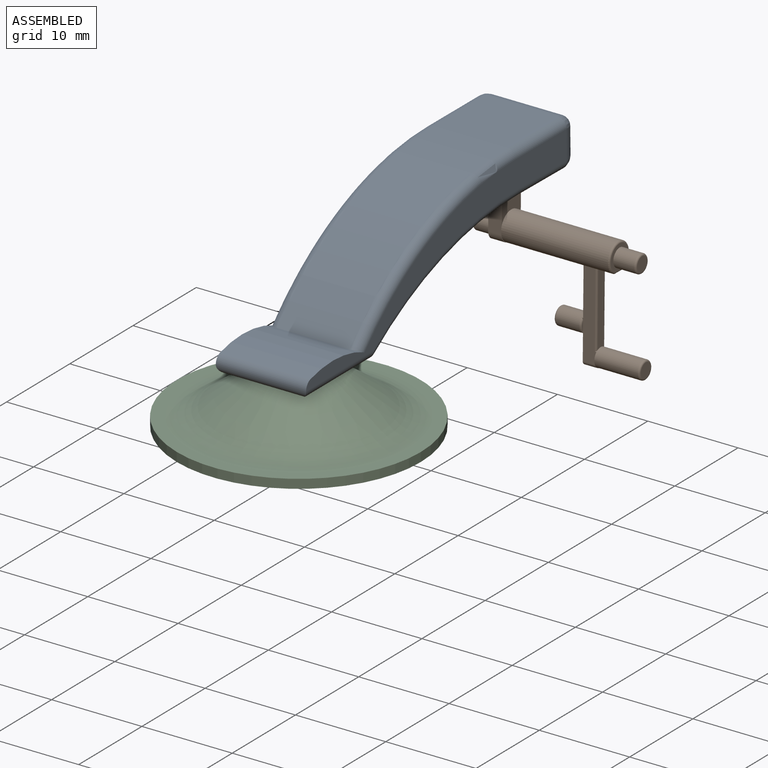
[diagram: assembled view]
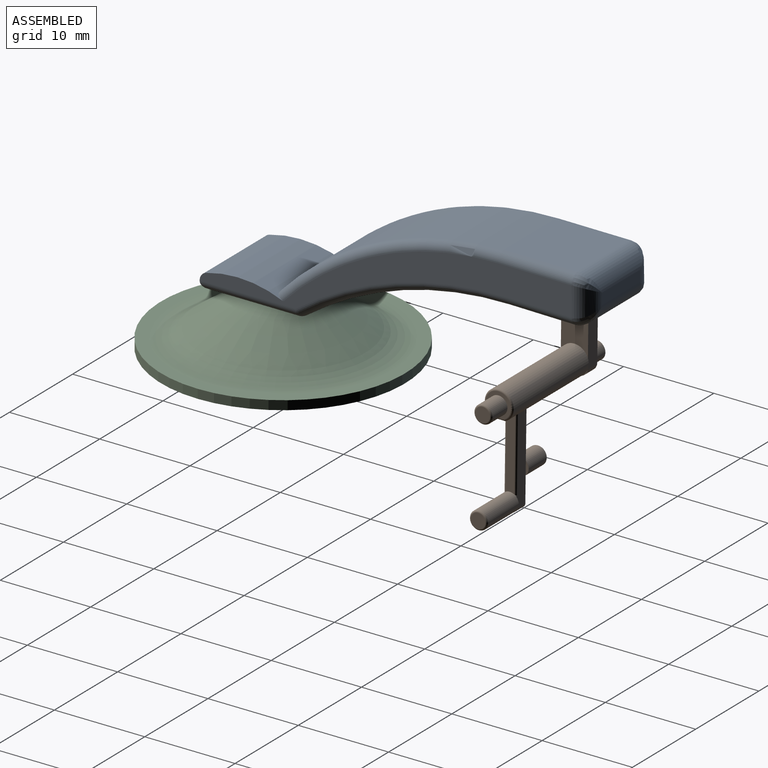
[diagram: assembled view, second angle]
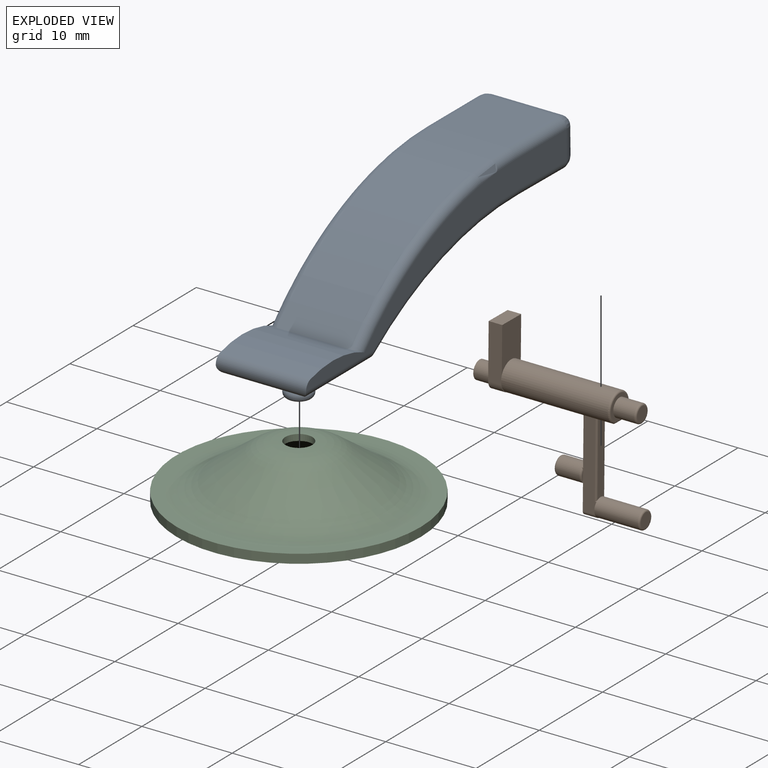
[diagram: exploded view]
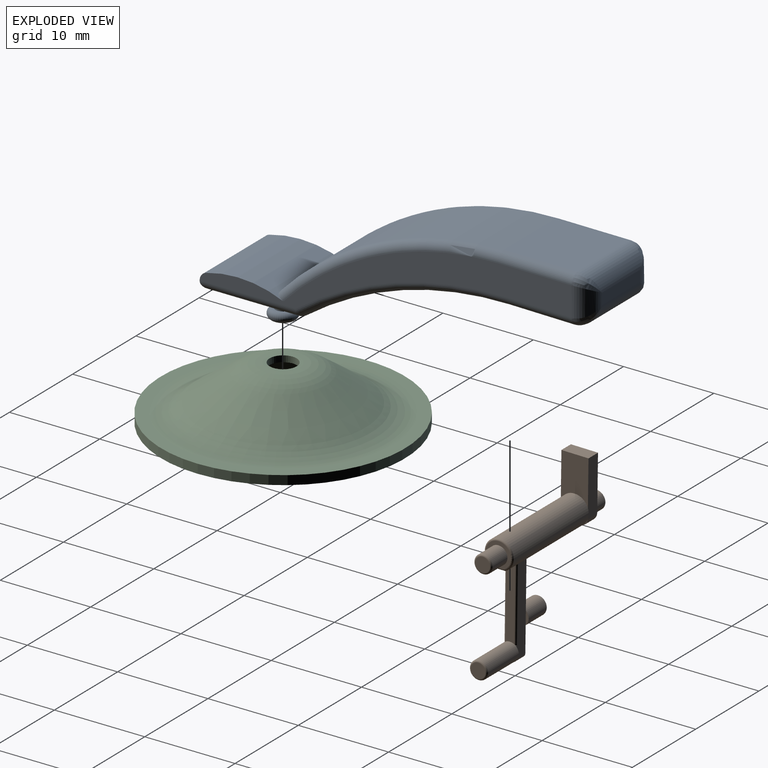
[diagram: exploded view, second angle]
ASSEMBLY  parts=3 mates=2
PART A: 46 faces, bbox 10x43.2x18.4 mm
  f0: plane 8x7.19mm, normal (0,-0.01,-1), area 53mm2, adj f5,f9,f18,f29,f30,f31,f32,f36
  f1: plane 8.1x8mm, normal (0,0,1), area 64.8mm2, adj f2,f20,f22,f40,f41,f45
  f2: cylinder r=33.55mm len=24.8mm, axis (-1,0,0), area 222.7mm2, adj f1,f3,f19,f21
  f3: cylinder r=12.71mm len=10mm, axis (-1,0,0), area 77mm2, adj f2,f7,f8,f12,f19,f21
  f4: plane 9.65x8mm, normal (0,0,-1), area 74.8mm2, adj f10,f12,f14,f15,f23
  f5: cylinder r=37.91mm len=22.73mm, axis (-1,0,0), area 194mm2, adj f0,f11,f15,f17
  f6: plane 6x1.25mm, normal (0,1,0.02), area 7.5mm2, adj f36,f39,f42,f45
  f7: plane 41.19x10.56mm, normal (1,0,0), area 101.9mm2, adj f3,f9,f10,f11,f12,f21,f22,f34
  f8: plane 41.19x10.56mm, normal (-1,0,0), area 101.9mm2, adj f3,f12,f14,f17,f18,f19,f20,f35
  f9: cylinder r=1mm len=7.2mm, axis (0,-1,0.01), area 11.3mm2, adj f0,f7,f11,f34
  f10: cylinder r=1mm len=10.65mm, axis (0,-1,0), area 16.2mm2, adj f4,f7,f12,f13
  f11: torus R=38.91mm, axis (1,0,0), area 38.5mm2, adj f5,f7,f9,f13
  f12: cylinder r=1mm len=10mm, axis (-1,0,0), area 27.5mm2, adj f3,f4,f7,f8,f10,f14
  f13: sphere r=1mm, area 0.6mm2, adj f10,f11,f15
  f14: cylinder r=1mm len=10.65mm, axis (0,1,0), area 16.2mm2, adj f4,f8,f12,f16
  f15: cylinder r=1mm len=8mm, axis (-1,0,0), area 5mm2, adj f4,f5,f13,f16
  f16: sphere r=1mm, area 0.6mm2, adj f14,f15,f17
  f17: torus R=38.91mm, axis (1,0,0), area 38.5mm2, adj f5,f8,f16,f18
  f18: cylinder r=1mm len=7.2mm, axis (0,1,-0.01), area 11.3mm2, adj f0,f8,f17,f35
  f19: torus R=32.55mm, axis (1,0,0), area 43mm2, adj f2,f3,f8,f20
  f20: cylinder r=1mm len=8.08mm, axis (0,-1,0), area 12.7mm2, adj f1,f8,f19,f41
  f21: torus R=32.55mm, axis (1,0,0), area 43mm2, adj f2,f3,f7,f22
  f22: cylinder r=1mm len=8.08mm, axis (0,1,0), area 12.7mm2, adj f1,f7,f21,f40
  f23: cylinder r=0.88mm len=2mm, axis (0,0,1), area 11mm2, adj f4,f26
  f24: cylinder r=1.5mm len=3mm, axis (0,0,1), area 0.1mm2, adj f27,f28
  f25: plane 1.94x1.94mm, normal (0,0,-1), area 3mm2, adj f28
  f26: plane 1.94x1.94mm, normal (0,0,1), area 0.6mm2, adj f23,f27
  f27: torus R=0.97mm, axis (0,0,-1), area 6.8mm2, adj f24,f26
  f28: torus R=0.97mm, axis (0,0,-1), area 6.8mm2, adj f24,f25
  f29: plane 1.5x0.1mm, normal (0,1,-0.01), area 0.2mm2, adj f0,f30,f32,f33
  f30: plane 3x0.14mm, normal (1,0,0), area 0.3mm2, adj f0,f29,f31,f33
  f31: plane 1.5x0.1mm, normal (0,-1,0.01), area 0.1mm2, adj f0,f30,f32,f33
  f32: plane 3x0.14mm, normal (-1,0,0), area 0.3mm2, adj f0,f29,f31,f33
  f33: plane 3x1.5mm, normal (0,-0.01,-1), area 4.5mm2, adj f29,f30,f31,f32
  f34: torus R=1mm, axis (1,0,0), area 0.1mm2, adj f7,f9,f36,f37
  f35: torus R=1mm, axis (1,0,0), area 0.1mm2, adj f8,f18,f36,f38
  f36: cylinder r=2mm len=8mm, axis (-1,0,0), area 23.3mm2, adj f0,f6,f34,f35,f37,f38
  f37: bspline ~2.07x2.04mm, area 3.3mm2, adj f34,f36,f39
  f38: bspline ~2.07x2.04mm, area 3.3mm2, adj f35,f36,f42
  f39: cylinder r=2mm len=3.28mm, axis (0,0.02,-1), area 7.9mm2, adj f6,f7,f37,f40,f43
  f40: bspline ~1.01x1mm, area 0.1mm2, adj f1,f22,f39,f43
  f41: bspline ~1.01x1mm, area 0.1mm2, adj f1,f20,f42,f44
  f42: cylinder r=2mm len=3.28mm, axis (0,-0.02,1), area 7.9mm2, adj f6,f8,f38,f41,f44
  f43: bspline ~2.13x2mm, area 3.2mm2, adj f39,f40,f45
  f44: bspline ~2.13x2mm, area 3.2mm2, adj f41,f42,f45
  f45: cylinder r=2mm len=8mm, axis (1,0,0), area 22.5mm2, adj f1,f6,f43,f44
PART B: 45 faces, bbox 17.1x3.5x18.5 mm
  f0: plane 1.15x0.11mm, normal (0,0,-1), area 0.1mm2, adj f6,f36,f41
  f1: plane 5.3x1.48mm, normal (0,0,-1), area 6.9mm2, adj f5,f6,f10,f12,f23,f41,f42
  f2: plane 0.61x0.21mm, normal (0,0,1), area 0mm2, adj f13,f15,f20
  f3: plane 0.61x0.21mm, normal (0,0,1), area 0mm2, adj f13,f15,f21
  f4: plane 8.12x0.96mm, normal (0,0,1), area 7.7mm2, adj f7,f15,f29,f30
  f5: plane 10x1mm, normal (-1,0,0), area 10mm2, adj f1,f39,f41,f42
  f6: cylinder r=1.6mm len=11.8mm, axis (0,0,-1), area 101.1mm2, adj f0,f1,f7,f9,f10,f12,f33,f34
  f7: plane 2x1.36mm, normal (-1,0,0), area 2.5mm2, adj f4,f6,f29,f30,f32
  f8: plane 2.8x2.65mm, normal (0,0,1), area 2.9mm2, adj f18,f32,f33
  f9: plane 1.15x0.11mm, normal (0,0,-1), area 0.1mm2, adj f6,f38,f42
  f10: plane 9.55x1.7mm, normal (0,1,0), area 12.7mm2, adj f1,f6,f11,f15,f17,f20,f22,f23
  f11: plane 3.27x1.36mm, normal (0,0,-1), area 4.1mm2, adj f10,f12,f13,f20,f21,f23
  f12: plane 9.55x1.5mm, normal (0,-1,0), area 12.7mm2, adj f1,f6,f11,f14,f15,f21,f25,f30
  f13: plane 1.5x0.46mm, normal (-1,0,0), area 0.7mm2, adj f2,f3,f11,f20,f21
  f14: plane 1.53x0.39mm, normal (0,0,-1), area 0.3mm2, adj f12,f15,f21
  f15: cylinder r=1mm len=5mm, axis (0,0,-1), area 30.2mm2, adj f2,f3,f4,f10,f12,f14,f17,f29
  f16: plane 1.6x1.6mm, normal (0,0,1), area 2mm2, adj f31
  f17: plane 1.53x0.39mm, normal (0,0,-1), area 0.3mm2, adj f10,f15,f20
  f18: cylinder r=1mm len=2.3mm, axis (0,0,-1), area 14.5mm2, adj f8,f28
  f19: plane 1.6x1.6mm, normal (0,0,1), area 2mm2, adj f28
  f20: cylinder r=0.45mm len=1.5mm, axis (0,0,1), area 1.1mm2, adj f2,f10,f11,f13,f17
  f21: cylinder r=0.45mm len=1.5mm, axis (0,0,-1), area 1.1mm2, adj f3,f11,f12,f13,f14
  f22: plane 0.84x0.12mm, normal (0,0,1), area 0.1mm2, adj f10,f26
  f23: cylinder r=1mm len=2.8mm, axis (0,0,1), area 17.3mm2, adj f1,f10,f11,f25,f26,f27
  f24: plane 1.6x1.6mm, normal (0,0,-1), area 2mm2, adj f27
  f25: plane 1.47x0.32mm, normal (0,0,1), area 0.3mm2, adj f12,f23
  f26: torus R=0.8mm, axis (0,0,-1), area 0.4mm2, adj f10,f22,f23
  f27: torus R=0.8mm, axis (0,0,-1), area 1.8mm2, adj f23,f24
  f28: torus R=0.8mm, axis (0,0,1), area 1.8mm2, adj f18,f19
  f29: cylinder r=0.2mm len=8.27mm, axis (-1,0,0), area 2.6mm2, adj f4,f7,f10,f15
  f30: cylinder r=0.2mm len=8.27mm, axis (1,0,0), area 2.6mm2, adj f4,f7,f12,f15
  f31: torus R=0.8mm, axis (0,0,1), area 1.8mm2, adj f15,f16
  f32: cylinder r=0.2mm len=1.36mm, axis (0,1,0), area 0.4mm2, adj f7,f8,f33
  f33: torus R=1.4mm, axis (0,0,1), area 2.6mm2, adj f6,f8,f32
  f34: plane 0.84x0.75mm, normal (0,0,1), area 0.1mm2, adj f6,f42
  f35: plane 4.99x3mm, normal (0,0,1), area 12.7mm2, adj f6,f36,f37,f38
  f36: plane 6x1.5mm, normal (0,1,0), area 9mm2, adj f0,f35,f37,f39,f41
  f37: plane 3x1.5mm, normal (1,0,0), area 4.5mm2, adj f35,f36,f38,f39
  f38: plane 6x1.5mm, normal (0,-1,0), area 9mm2, adj f9,f35,f37,f39,f42
  f39: plane 7x3mm, normal (0,0,-1), area 17.4mm2, adj f5,f36,f37,f38,f41,f42,f43
  f40: plane 0.84x0.75mm, normal (0,0,1), area 0.1mm2, adj f6,f41
  f41: cylinder r=1mm len=10mm, axis (0,0,-1), area 4.4mm2, adj f0,f1,f5,f6,f36,f39,f40
  f42: cylinder r=1mm len=10mm, axis (0,0,-1), area 4.4mm2, adj f1,f5,f6,f9,f34,f38,f39
  f43: cylinder r=1mm len=2mm, axis (0,0,1), area 12.6mm2, adj f39,f44
  f44: plane 2x2mm, normal (0,0,-1), area 3.1mm2, adj f43
PART C: 11 faces, bbox 34.1x34.1x6 mm
  f0: cone r=10.5mm half-angle=54.5deg, axis (0,0,1), area 288.7mm2, adj f6,f10
  f1: plane 27x27mm, normal (0,0,1), area 110.5mm2, adj f2,f10
  f2: cylinder r=13.5mm len=27mm, axis (0,0,-1), area 84.8mm2, adj f1,f3
  f3: plane 27x27mm, normal (0,0,-1), area 110.5mm2, adj f2,f8
  f4: cone r=10.5mm half-angle=54.5deg, axis (0,0,1), area 235.1mm2, adj f8,f9
  f5: plane 3.74x3.74mm, normal (0,0,-1), area 3.9mm2, adj f7,f9
  f6: plane 6.14x6.14mm, normal (0,0,1), area 22.5mm2, adj f0,f7
  f7: cylinder r=1.5mm len=3mm, axis (0,0,1), area 6.5mm2, adj f5,f6
  f8: torus R=12.13mm, axis (0,0,-1), area 209.9mm2, adj f3,f4
  f9: torus R=1.87mm, axis (0,0,1), area 67.3mm2, adj f4,f5
  f10: torus R=12.13mm, axis (0,0,-1), area 209.9mm2, adj f0,f1
PLACE A t=(-16.29,-0.06,-8.49)mm
PLACE B rot(axis=(0.71,0,0.71),179.4deg) t=(-10.54,-20.82,16.5)mm
PLACE C rot(axis=(0,1,0),180deg) t=(-11.18,-41.77,34.39)mm
MATE fastened C.f0 <-> A.f23  axis (0,0,1) through (-11.18,-53.5,14.74)mm
MATE fastened B.f37 <-> A.f0  axis (0,0.01,1) through (-11.29,-20.74,22.05)mm
